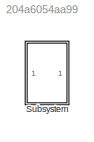
MODEL slx_204a6054aa99
KIND model
CONFIG AbsTol = auto
CONFIG EnableMultiTasking = off
CONFIG FixedStep = auto
CONFIG MaxStep = auto
CONFIG MinStep = auto
CONFIG RelTol = 1e-3
CONFIG SampleTimeConstraint = Unconstrained
CONFIG Solver = VariableStepAuto
CONFIG SolverName = VariableStepAuto
CONFIG StartTime = 0.0
CONFIG StopTime = 30
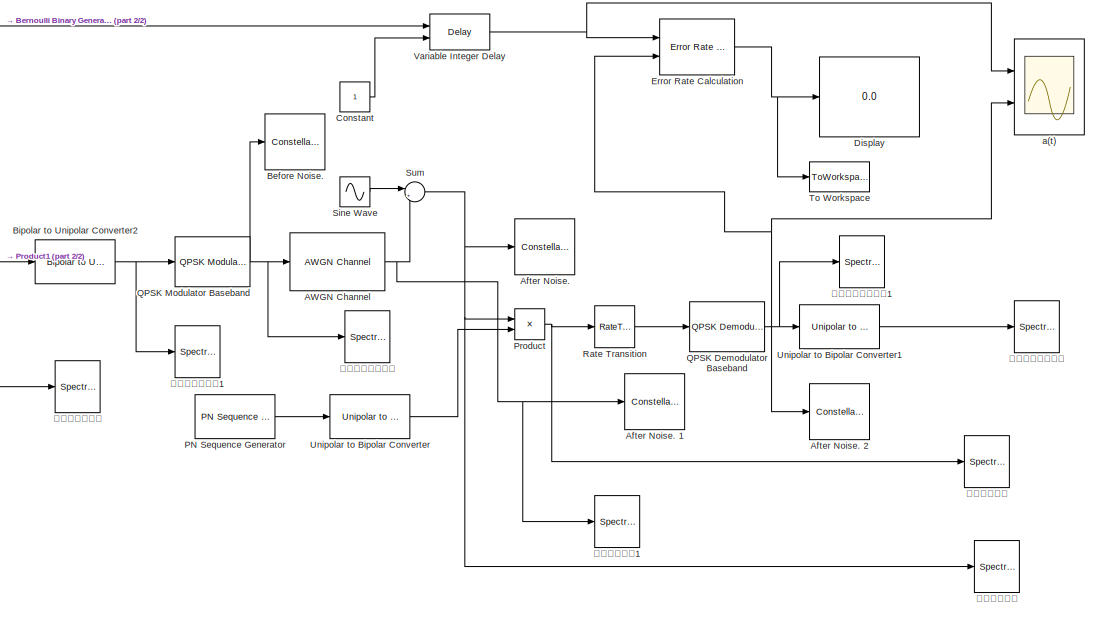
[diagram: Subsystem - part 1/2, center side, full height]
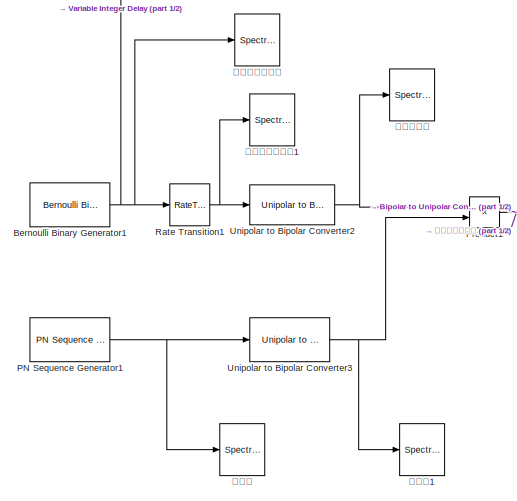
[diagram: Subsystem - part 2/2, left side, full height]
BLOCK [SubSystem] Subsystem
  Ports = []
  RequestExecContextInheritance = off
BLOCK [Reference] Subsystem/AWGN Channel  REF=commchan3/AWGN
Channel
  Ports = [1, 1]
  SourceBlock = commchan3/AWGN\nChannel
  SourceProductBaseCode = CM
  SourceProductName = Communications System Toolbox
  SourceType = AWGN Channel
  UserDataPersistent = on
BLOCK [ConstellationDiagram] Subsystem/After Noise. 
  Ports = [1]
  ScopeSpecificationString = comm.scopes.ConstellationDiagramBlockCfg('CurrentConfiguration', extmgr.ConfigurationSet(extmgr.Configuration('Core','General UI',true),extmgr.Configuration('Core','Source UI',true),extmgr.Configuration('Sources','WiredSimulink',true),extmgr.Configuration('Visuals','Constellation',true,'LineProperties',struct('DisplayName','','Color',[1 1 0.0666666666666667],'LineStyle','none','LineWidth',0.5,'Mar...<+677ch>  <repeated x3 — deduplicated; at blocks: After Noise., After Noise. 1, After Noise. 2>
BLOCK [ConstellationDiagram] Subsystem/After Noise. 1
  Ports = [1]
BLOCK [ConstellationDiagram] Subsystem/After Noise. 2
  Ports = [1]
BLOCK [ConstellationDiagram] Subsystem/Before Noise.
  Ports = [1]
  ScopeSpecificationString = comm.scopes.ConstellationDiagramBlockCfg('CurrentConfiguration', extmgr.ConfigurationSet(extmgr.Configuration('Core','General UI',true),extmgr.Configuration('Core','Source UI',true),extmgr.Configuration('Sources','WiredSimulink',true),extmgr.Configuration('Visuals','Constellation',true,'LineProperties',struct('DisplayName','','Color',[1 1 0.0666666666666667],'LineStyle','none','LineWidth',0.5,'Mar...<+709ch>
BLOCK [Reference] Subsystem/Bernoulli Binary Generator1  REF=commrandsrc3/Bernoulli Binary
Generator
  Ports = [0, 1]
  SourceBlock = commrandsrc3/Bernoulli Binary\nGenerator
  SourceProductBaseCode = CM
  SourceProductName = Communications System Toolbox
  SourceType = Bernoulli Binary Generator
BLOCK [Reference] Subsystem/Bipolar to Unipolar Converter2  REF=commutil2/Bipolar to
Unipolar
Converter
  Ports = [1, 1]
  SourceBlock = commutil2/Bipolar to\nUnipolar\nConverter
  SourceProductBaseCode = CM
  SourceProductName = Communications System Toolbox
  SourceType = Bipolar to Unipolar Converter
BLOCK [Constant] Subsystem/Constant
BLOCK [Display] Subsystem/Display
  Decimation = 1
  Ports = [1]
BLOCK [Reference] Subsystem/Error Rate Calculation  REF=commsink2/Error Rate
Calculation
  Ports = [2, 1]
  SourceBlock = commsink2/Error Rate\nCalculation
  SourceProductBaseCode = CM
  SourceProductName = Communications System Toolbox
  SourceType = Error Rate Calculation
BLOCK [Reference] Subsystem/PN Sequence Generator  REF=commseqgen3/PN Sequence
Generator
  Ports = [0, 1]
  SourceBlock = commseqgen3/PN Sequence\nGenerator
  SourceProductBaseCode = CM
  SourceProductName = Communications System Toolbox
  SourceType = PN Sequence Generator
BLOCK [Reference] Subsystem/PN Sequence Generator1  REF=commseqgen3/PN Sequence
Generator
  Ports = [0, 1]
  SourceBlock = commseqgen3/PN Sequence\nGenerator
  SourceProductBaseCode = CM
  SourceProductName = Communications System Toolbox
  SourceType = PN Sequence Generator
BLOCK [Product] Subsystem/Product
  InputSameDT = off
  OutDataTypeStr = Inherit: Inherit via internal rule
  Ports = [2, 1]
  RndMeth = Floor
  SaturateOnIntegerOverflow = off
BLOCK [Product] Subsystem/Product1
  InputSameDT = off
  OutDataTypeStr = Inherit: Inherit via internal rule
  Ports = [2, 1]
  RndMeth = Floor
  SaturateOnIntegerOverflow = off
BLOCK [Reference] Subsystem/QPSK Demodulator Baseband  REF=commdigbbndpm3/QPSK
Demodulator
Baseband
  Ports = [1, 1]
  SourceBlock = commdigbbndpm3/QPSK\nDemodulator\nBaseband
  SourceProductBaseCode = CM
  SourceProductName = Communications System Toolbox
  SourceType = QPSK Demodulator Baseband
BLOCK [Reference] Subsystem/QPSK Modulator Baseband  REF=commdigbbndpm3/QPSK
Modulator
Baseband
  Ports = [1, 1]
  SourceBlock = commdigbbndpm3/QPSK\nModulator\nBaseband
  SourceProductBaseCode = CM
  SourceProductName = Communications System Toolbox
  SourceType = QPSK Modulator Baseband
BLOCK [RateTransition] Subsystem/Rate Transition
  InitialCondition = 1
  OutPortSampleTime = 1
BLOCK [RateTransition] Subsystem/Rate Transition1
  Deterministic = off
  OutPortSampleTime = 1/2000
BLOCK [Sin] Subsystem/Sine Wave
  Frequency = 300
  Ports = [0, 1]
  SampleTime = 1/2000
BLOCK [Sum] Subsystem/Sum
  IconShape = round
  InputSameDT = off
  Inputs = |++
  OutDataTypeStr = Inherit: Inherit via internal rule
  Ports = [2, 1]
  SaturateOnIntegerOverflow = off
BLOCK [ToWorkspace] Subsystem/To Workspace
  FixptAsFi = on
  MaxDataPoints = inf
  Ports = [1]
  SampleTime = -1
  Save2DSignal = 2-D array (concatenate along first dimension)
  VariableName = dsss_qpsk
BLOCK [Reference] Subsystem/Unipolar to Bipolar Converter  REF=commutil2/Unipolar to
Bipolar
Converter
  Ports = [1, 1]
  SourceBlock = commutil2/Unipolar to\nBipolar\nConverter
  SourceProductBaseCode = CM
  SourceProductName = Communications System Toolbox
  SourceType = Unipolar to Bipolar Converter
BLOCK [Reference] Subsystem/Unipolar to Bipolar Converter1  REF=commutil2/Unipolar to
Bipolar
Converter
  Ports = [1, 1]
  SourceBlock = commutil2/Unipolar to\nBipolar\nConverter
  SourceProductBaseCode = CM
  SourceProductName = Communications System Toolbox
  SourceType = Unipolar to Bipolar Converter
BLOCK [Reference] Subsystem/Unipolar to Bipolar Converter2  REF=commutil2/Unipolar to
Bipolar
Converter
  Ports = [1, 1]
  SourceBlock = commutil2/Unipolar to\nBipolar\nConverter
  SourceProductBaseCode = CM
  SourceProductName = Communications System Toolbox
  SourceType = Unipolar to Bipolar Converter
BLOCK [Reference] Subsystem/Unipolar to Bipolar Converter3  REF=commutil2/Unipolar to
Bipolar
Converter
  Ports = [1, 1]
  SourceBlock = commutil2/Unipolar to\nBipolar\nConverter
  SourceProductBaseCode = CM
  SourceProductName = Communications System Toolbox
  SourceType = Unipolar to Bipolar Converter
BLOCK [Delay] Subsystem/Variable Integer Delay
  DelayLengthSource = Input port
  InputPortMap = u0,p1
  Ports = [2, 1]
BLOCK [Scope] Subsystem/a(t)
  Floating = off
  NumInputPorts = 2
  Ports = [2]
  ScopeSpecificationString = Simulink.scopes.TimeScopeBlockCfg('CurrentConfiguration', extmgr.ConfigurationSet(extmgr.Configuration('Core','General UI',true),extmgr.Configuration('Core','Source UI',true),extmgr.Configuration('Sources','WiredSimulink',true),extmgr.Configuration('Visuals','Time Domain',true,'SerializedDisplays',{struct('MinYLimReal','-1.25','MaxYLimReal','1.25','YLabelReal','','MinYLimMag','0.00000','MaxYLimMag...<+9242ch>
BLOCK [SpectrumAnalyzer] Subsystem/信源产生的信号
  Ports = [1]
  ScopeSpecificationString = spbscopes.SpectrumAnalyzerBlockCfg('CurrentConfiguration', extmgr.ConfigurationSet(extmgr.Configuration('Core','General UI',true),extmgr.Configuration('Core','Source UI',true),extmgr.Configuration('Sources','WiredSimulink',true),extmgr.Configuration('Visuals','Spectrum',true,'AxesProperties',struct('Color',{[0 0 0],[0 0 0]},'XColor',{[0.686274509803922 0.686274509803922 0.686274509803922],[0.68627...<+1692ch>
BLOCK [SpectrumAnalyzer] Subsystem/信源产生的信号1
  Ports = [1]
  ScopeSpecificationString = spbscopes.SpectrumAnalyzerBlockCfg('CurrentConfiguration', extmgr.ConfigurationSet(extmgr.Configuration('Core','General UI',true),extmgr.Configuration('Core','Source UI',true),extmgr.Configuration('Sources','WiredSimulink',true),extmgr.Configuration('Visuals','Spectrum',true,'AxesProperties',struct('Color',{[0 0 0],[0 0 0]},'XColor',{[0.686274509803922 0.686274509803922 0.686274509803922],[0.68627...<+1870ch>  <repeated x3 — deduplicated; at blocks: 信源产生的信号1, 扩频之后的信号, 扩频之后的信号1>
BLOCK [SpectrumAnalyzer] Subsystem/信源双极性
  Ports = [1]
  ScopeSpecificationString = spbscopes.SpectrumAnalyzerBlockCfg('CurrentConfiguration', extmgr.ConfigurationSet(extmgr.Configuration('Core','General UI',true),extmgr.Configuration('Core','Source UI',true),extmgr.Configuration('Sources','WiredSimulink',true),extmgr.Configuration('Visuals','Spectrum',true,'AxesProperties',struct('Color',{[0 0 0],[0 0 0]},'XColor',{[0.686274509803922 0.686274509803922 0.686274509803922],[0.68627...<+1895ch>
BLOCK [SpectrumAnalyzer] Subsystem/信道信号频谱
  Ports = [1]
  ScopeSpecificationString = spbscopes.SpectrumAnalyzerBlockCfg('CurrentConfiguration', extmgr.ConfigurationSet(extmgr.Configuration('Core','General UI',true),extmgr.Configuration('Core','Source UI',true),extmgr.Configuration('Sources','WiredSimulink',true),extmgr.Configuration('Visuals','Spectrum',true,'AxesProperties',struct('Color',{[0 0 0],[0 0 0]},'XColor',{[0.686274509803922 0.686274509803922 0.686274509803922],[0.68627...<+1805ch>
BLOCK [SpectrumAnalyzer] Subsystem/信道信号频谱1
  Ports = [1]
  ScopeSpecificationString = spbscopes.SpectrumAnalyzerBlockCfg('CurrentConfiguration', extmgr.ConfigurationSet(extmgr.Configuration('Core','General UI',true),extmgr.Configuration('Core','Source UI',true),extmgr.Configuration('Sources','WiredSimulink',true),extmgr.Configuration('Visuals','Spectrum',true,'AxesProperties',struct('Color',{[0 0 0],[0 0 0]},'XColor',{[0.686274509803922 0.686274509803922 0.686274509803922],[0.68627...<+1806ch>
BLOCK [SpectrumAnalyzer] Subsystem/扩频之后的信号
  Ports = [1]
BLOCK [SpectrumAnalyzer] Subsystem/扩频之后的信号1
  Ports = [1]
BLOCK [SpectrumAnalyzer] Subsystem/扩频之后经过调制
  Ports = [1]
  ScopeSpecificationString = spbscopes.SpectrumAnalyzerBlockCfg('CurrentConfiguration', extmgr.ConfigurationSet(extmgr.Configuration('Core','General UI',true),extmgr.Configuration('Core','Source UI',true),extmgr.Configuration('Sources','WiredSimulink',true),extmgr.Configuration('Visuals','Spectrum',true,'AxesProperties',struct('Color',{[0 0 0],[0 0 0]},'XColor',{[0.686274509803922 0.686274509803922 0.686274509803922],[0.68627...<+1867ch>
BLOCK [SpectrumAnalyzer] Subsystem/扩频码
  Ports = [1]
  ScopeSpecificationString = spbscopes.SpectrumAnalyzerBlockCfg('CurrentConfiguration', extmgr.ConfigurationSet(extmgr.Configuration('Core','General UI',true),extmgr.Configuration('Core','Source UI',true),extmgr.Configuration('Sources','WiredSimulink',true),extmgr.Configuration('Visuals','Spectrum',true,'AxesProperties',struct('Color',{[0 0 0],[0 0 0]},'XColor',{[0.686274509803922 0.686274509803922 0.686274509803922],[0.68627...<+1868ch>
BLOCK [SpectrumAnalyzer] Subsystem/扩频码1
  Ports = [1]
  ScopeSpecificationString = spbscopes.SpectrumAnalyzerBlockCfg('CurrentConfiguration', extmgr.ConfigurationSet(extmgr.Configuration('Core','General UI',true),extmgr.Configuration('Core','Source UI',true),extmgr.Configuration('Sources','WiredSimulink',true),extmgr.Configuration('Visuals','Spectrum',true,'AxesProperties',struct('Color',{[0 0 0],[0 0 0]},'XColor',{[0.686274509803922 0.686274509803922 0.686274509803922],[0.68627...<+1868ch>
BLOCK [SpectrumAnalyzer] Subsystem/解扩信号频谱
  Ports = [1]
  ScopeSpecificationString = spbscopes.SpectrumAnalyzerBlockCfg('CurrentConfiguration', extmgr.ConfigurationSet(extmgr.Configuration('Core','General UI',true),extmgr.Configuration('Core','Source UI',true),extmgr.Configuration('Sources','WiredSimulink',true),extmgr.Configuration('Visuals','Spectrum',true,'AxesProperties',struct('Color',{[0 0 0],[0 0 0]},'XColor',{[0.686274509803922 0.686274509803922 0.686274509803922],[0.68627...<+1865ch>
BLOCK [SpectrumAnalyzer] Subsystem/解调数据输出频谱
  Ports = [1]
  ScopeSpecificationString = spbscopes.SpectrumAnalyzerBlockCfg('CurrentConfiguration', extmgr.ConfigurationSet(extmgr.Configuration('Core','General UI',true),extmgr.Configuration('Core','Source UI',true),extmgr.Configuration('Sources','WiredSimulink',true),extmgr.Configuration('Visuals','Spectrum',true,'AxesProperties',struct('Color',{[0 0 0],[0 0 0]},'XColor',{[0.686274509803922 0.686274509803922 0.686274509803922],[0.68627...<+1789ch>
BLOCK [SpectrumAnalyzer] Subsystem/解调数据输出频谱1
  Ports = [1]
  ScopeSpecificationString = spbscopes.SpectrumAnalyzerBlockCfg('CurrentConfiguration', extmgr.ConfigurationSet(extmgr.Configuration('Core','General UI',true),extmgr.Configuration('Core','Source UI',true),extmgr.Configuration('Sources','WiredSimulink',true),extmgr.Configuration('Visuals','Spectrum',true,'AxesProperties',struct('Color',{[0 0 0],[0 0 0]},'XColor',{[0.686274509803922 0.686274509803922 0.686274509803922],[0.68627...<+1763ch>
NET Subsystem/AWGN Channel:1 -> Subsystem/After Noise. 1:1, Subsystem/Sum:2, Subsystem/信道信号频谱1:1
NET Subsystem/Bernoulli Binary Generator1:1 -> Subsystem/Rate Transition1:1, Subsystem/Variable Integer Delay:1, Subsystem/信源产生的信号:1
NET Subsystem/Bipolar to Unipolar Converter2:1 -> Subsystem/QPSK Modulator Baseband:1, Subsystem/扩频之后的信号1:1
LINE Subsystem/Constant:1 -> Subsystem/Variable Integer Delay:2
NET Subsystem/Error Rate Calculation:1 -> Subsystem/Display:1, Subsystem/To Workspace:1
NET Subsystem/PN Sequence Generator1:1 -> Subsystem/Unipolar to Bipolar Converter3:1, Subsystem/扩频码:1
LINE Subsystem/PN Sequence Generator:1 -> Subsystem/Unipolar to Bipolar Converter:1
NET Subsystem/Product1:1 -> Subsystem/Bipolar to Unipolar Converter2:1, Subsystem/扩频之后的信号:1
NET Subsystem/Product:1 -> Subsystem/Rate Transition:1, Subsystem/解扩信号频谱:1
NET Subsystem/QPSK Demodulator Baseband:1 -> Subsystem/After Noise. 2:1, Subsystem/Error Rate Calculation:2, Subsystem/Unipolar to Bipolar Converter1:1, Subsystem/a(t):2, Subsystem/解调数据输出频谱1:1
NET Subsystem/QPSK Modulator Baseband:1 -> Subsystem/AWGN Channel:1, Subsystem/Before Noise.:1, Subsystem/扩频之后经过调制:1
NET Subsystem/Rate Transition1:1 -> Subsystem/Unipolar to Bipolar Converter2:1, Subsystem/信源产生的信号1:1
LINE Subsystem/Rate Transition:1 -> Subsystem/QPSK Demodulator Baseband:1
LINE Subsystem/Sine Wave:1 -> Subsystem/Sum:1
NET Subsystem/Sum:1 -> Subsystem/After Noise. :1, Subsystem/Product:1, Subsystem/信道信号频谱:1
LINE Subsystem/Unipolar to Bipolar Converter1:1 -> Subsystem/解调数据输出频谱:1
NET Subsystem/Unipolar to Bipolar Converter2:1 -> Subsystem/Product1:1, Subsystem/信源双极性:1
NET Subsystem/Unipolar to Bipolar Converter3:1 -> Subsystem/Product1:2, Subsystem/扩频码1:1
LINE Subsystem/Unipolar to Bipolar Converter:1 -> Subsystem/Product:2
NET Subsystem/Variable Integer Delay:1 -> Subsystem/Error Rate Calculation:1, Subsystem/a(t):1
note: NET lines group one-source signal fan-out (src -> all destinations, sorted); 1:1 wires keep LINE
